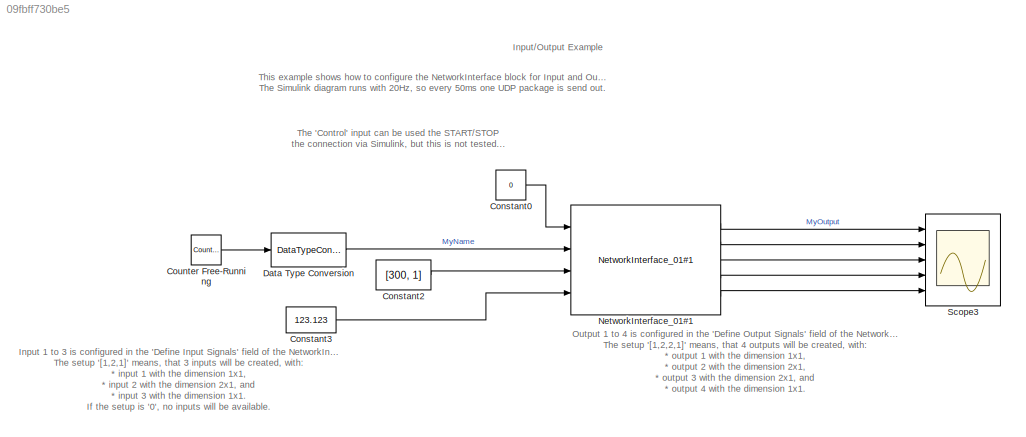
MODEL slx_09fbff730be5
KIND model
CONFIG AbsTol = auto
CONFIG EnableMultiTasking = off
CONFIG FixedStep = 0.05
CONFIG MaxStep = auto
CONFIG MinStep = auto
CONFIG RelTol = 1e-3
CONFIG SampleTimeConstraint = Unconstrained
CONFIG Solver = FixedStepDiscrete
CONFIG SolverName = FixedStepDiscrete
CONFIG StartTime = 0.0
CONFIG StopTime = inf
BLOCK [Constant] Constant0
  OutDataTypeStr = double
  SampleTime = -1
  Value = 0
BLOCK [Constant] Constant2
  OutDataTypeStr = double
  SampleTime = -1
  Value = [300, 1]
BLOCK [Constant] Constant3
  OutDataTypeStr = double
  SampleTime = -1
  Value = 123.123
BLOCK [Reference] Counter Free-Running  REF=simulink/Sources/Counter
Free-Running
  Ports = [0, 1]
  SourceBlock = simulink/Sources/Counter\nFree-Running
  SourceType = Counter Free-Running
BLOCK [DataTypeConversion] Data Type Conversion
  RndMeth = Floor
  SaturateOnIntegerOverflow = off
BLOCK [Reference] NetworkInterface_01#1  REF=LIB_NetwokInterface/NetworkInterface_01#1
  Ports = [4, 5]
  SourceBlock = LIB_NetwokInterface/NetworkInterface_01#1
  SourceType = NetworkInterface Block
BLOCK [Scope] Scope3
  NumInputPorts = 5
  Ports = [5]
  ScopeSpecificationString = Simulink.scopes.TimeScopeBlockCfg('CurrentConfiguration', extmgr.ConfigurationSet(extmgr.Configuration('Core','General UI',true),extmgr.Configuration('Core','Source UI',true),extmgr.Configuration('Sources','WiredSimulink',true,'DataLoggingVariableName','ScopeData1','DataLoggingLimitDataPoints',true,'DataLoggingSaveFormat','Array','DataLoggingDecimation','1','DataLoggingDecimateData',true),extmgr.C...<+4298ch>
ANNOTATION (root): Input/Output Example
ANNOTATION (root): Input 1 to 3 is configured in the 'Define Input Signals' field of the NetworkInface configuration dialog. The setup '[1,2,1]' means, that 3 inputs will be created, with: * input 1 with the dimension 1x1, * input 2 with the dimension 2x1, and * input 3 with the dimension 1x1. If the setup is '0', no inputs will be available. Because the signal connecting the 'Counter Free-Running' block and the 'in...<+253ch>
ANNOTATION (root): Output 1 to 4 is configured in the 'Define Output Signals' field of the NetworkInface configuration dialog. The setup '[1,2,2,1]' means, that 4 outputs will be created, with: * output 1 with the dimension 1x1, * output 2 with the dimension 2x1, * output 3 with the dimension 2x1, and * output 4 with the dimension 1x1. If the setup is '0', no outputs will be available. Until the first UDP package is...<+505ch>
ANNOTATION (root): The 'Control' input can be used the START/STOP the connection via Simulink, but this is not tested...
ANNOTATION (root): This example shows how to configure the NetworkInterface block for Input and Output operation. The Simulink diagram runs with 20Hz, so every 50ms one UDP package is send out.
LINE Constant0:1 -> NetworkInterface_01#1:1
LINE Constant2:1 -> NetworkInterface_01#1:3
LINE Constant3:1 -> NetworkInterface_01#1:4
LINE Counter Free-Running:1 -> Data Type Conversion:1
LINE Data Type Conversion:1 -> NetworkInterface_01#1:2
LINE NetworkInterface_01#1:1 -> Scope3:1
LINE NetworkInterface_01#1:2 -> Scope3:2
LINE NetworkInterface_01#1:3 -> Scope3:3
LINE NetworkInterface_01#1:4 -> Scope3:4
LINE NetworkInterface_01#1:5 -> Scope3:5
